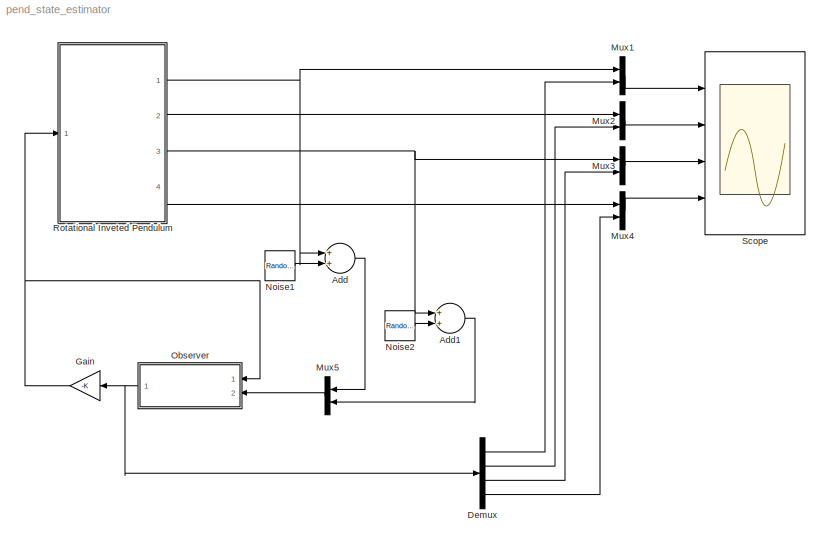
MODEL pend_state_estimator
KIND model
BLOCK [Sum] Add
  InputSameDT = off
  OutDataType = sfix(16)
  OutDataTypeMode = Inherit via internal rule
  OutDataTypeStr = Inherit: Inherit via internal rule
  OutScaling = 2^-10
  Ports = [2, 1]
  SID = 1
  SaturateOnIntegerOverflow = off
BLOCK [Sum] Add1
  InputSameDT = off
  OutDataType = sfix(16)
  OutDataTypeMode = Inherit via internal rule
  OutDataTypeStr = Inherit: Inherit via internal rule
  OutScaling = 2^-10
  Ports = [2, 1]
  SID = 2
  SaturateOnIntegerOverflow = off
BLOCK [Demux] Demux
  DisplayOption = bar
  Ports = [1, 4]
  SID = 3
BLOCK [Gain] Gain
  Gain = -K
  Multiplication = Matrix(K*u)
  OutDataType = sfix(16)
  OutDataTypeMode = Inherit via internal rule
  OutDataTypeStr = Inherit: Inherit via internal rule
  OutScaling = 2^0
  ParamDataTypeStr = Inherit: Inherit via internal rule
  ParameterDataType = sfix(16)
  ParameterDataTypeMode = Inherit via internal rule
  ParameterScaling = 2^0
  SID = 4
  SaturateOnIntegerOverflow = off
BLOCK [Mux] Mux1
  DisplayOption = bar
  Inputs = 2
  Ports = [2, 1]
  SID = 5
BLOCK [Mux] Mux2
  DisplayOption = bar
  Inputs = 2
  Ports = [2, 1]
  SID = 6
BLOCK [Mux] Mux3
  DisplayOption = bar
  Inputs = 2
  Ports = [2, 1]
  SID = 7
BLOCK [Mux] Mux4
  DisplayOption = bar
  Inputs = 2
  Ports = [2, 1]
  SID = 8
BLOCK [Mux] Mux5
  DisplayOption = bar
  Inputs = 2
  Ports = [2, 1]
  SID = 9
BLOCK [RandomNumber] Noise1
  SID = 10
  SampleTime = 0
  Variance = 0.001
BLOCK [RandomNumber] Noise2
  SID = 11
  SampleTime = 0
  Variance = 0.001
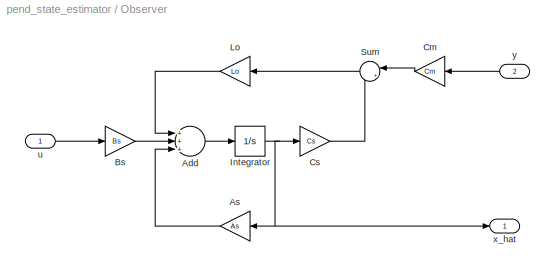
BLOCK [SubSystem] Observer
  FunctionWithSeparateData = off
  MaskHideContents = off
  MinAlgLoopOccurrences = off
  Opaque = off
  Ports = [2, 1]
  PropExecContextOutsideSubsystem = off
  RTWSystemCode = Auto
  RequestExecContextInheritance = off
  SID = 12
BLOCK [Sum] Observer/Add
  InputSameDT = off
  Inputs = +++
  OutDataType = sfix(16)
  OutDataTypeMode = Inherit via internal rule
  OutDataTypeStr = Inherit: Inherit via internal rule
  OutScaling = 2^-10
  Ports = [3, 1]
  SID = 15
  SaturateOnIntegerOverflow = off
BLOCK [Gain] Observer/As
  Gain = As
  Multiplication = Matrix(K*u)
  OutDataType = sfix(16)
  OutDataTypeMode = Inherit via internal rule
  OutDataTypeStr = Inherit: Inherit via internal rule
  OutScaling = 2^0
  ParamDataTypeStr = Inherit: Inherit via internal rule
  ParameterDataType = sfix(16)
  ParameterDataTypeMode = Inherit via internal rule
  ParameterScaling = 2^0
  SID = 16
  SaturateOnIntegerOverflow = off
BLOCK [Gain] Observer/Bs
  Gain = Bs
  Multiplication = Matrix(K*u)
  OutDataType = sfix(16)
  OutDataTypeMode = Inherit via internal rule
  OutDataTypeStr = Inherit: Inherit via internal rule
  OutScaling = 2^0
  ParamDataTypeStr = Inherit: Inherit via internal rule
  ParameterDataType = sfix(16)
  ParameterDataTypeMode = Inherit via internal rule
  ParameterScaling = 2^0
  SID = 17
  SaturateOnIntegerOverflow = off
BLOCK [Gain] Observer/Cm
  Gain = Cm
  Multiplication = Matrix(K*u)
  OutDataType = sfix(16)
  OutDataTypeMode = Inherit via internal rule
  OutDataTypeStr = Inherit: Inherit via internal rule
  OutScaling = 2^0
  ParamDataTypeStr = Inherit: Inherit via internal rule
  ParameterDataType = sfix(16)
  ParameterDataTypeMode = Inherit via internal rule
  ParameterScaling = 2^0
  SID = 18
  SaturateOnIntegerOverflow = off
BLOCK [Gain] Observer/Cs
  Gain = Cs
  Multiplication = Matrix(K*u)
  OutDataType = sfix(16)
  OutDataTypeMode = Inherit via internal rule
  OutDataTypeStr = Inherit: Inherit via internal rule
  OutScaling = 2^0
  ParamDataTypeStr = Inherit: Inherit via internal rule
  ParameterDataType = sfix(16)
  ParameterDataTypeMode = Inherit via internal rule
  ParameterScaling = 2^0
  SID = 19
  SaturateOnIntegerOverflow = off
BLOCK [Integrator] Observer/Integrator
  Ports = [1, 1]
  SID = 20
BLOCK [Gain] Observer/Lo
  Gain = Lo
  Multiplication = Matrix(K*u)
  OutDataType = sfix(16)
  OutDataTypeMode = Inherit via internal rule
  OutDataTypeStr = Inherit: Inherit via internal rule
  OutScaling = 2^0
  ParamDataTypeStr = Inherit: Inherit via internal rule
  ParameterDataType = sfix(16)
  ParameterDataTypeMode = Inherit via internal rule
  ParameterScaling = 2^0
  SID = 21
  SaturateOnIntegerOverflow = off
BLOCK [Sum] Observer/Sum
  IconShape = round
  InputSameDT = off
  Inputs = |+-
  OutDataType = sfix(16)
  OutDataTypeMode = Inherit via internal rule
  OutDataTypeStr = Inherit: Inherit via internal rule
  OutScaling = 2^0
  Ports = [2, 1]
  SID = 22
  SaturateOnIntegerOverflow = off
BLOCK [Inport] Observer/u
  IconDisplay = Port number
  OutDataType = sfix(16)
  OutScaling = 2^0
  SID = 13
BLOCK [Outport] Observer/x_hat
  IconDisplay = Port number
  OutDataType = sfix(16)
  OutScaling = 2^0
  SID = 23
BLOCK [Inport] Observer/y
  IconDisplay = Port number
  OutDataType = sfix(16)
  OutScaling = 2^0
  Port = 2
  SID = 14
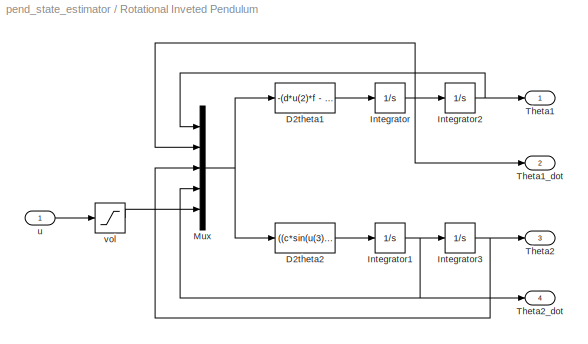
BLOCK [SubSystem] Rotational Inveted Pendulum
  FunctionWithSeparateData = off
  MaskHideContents = off
  MinAlgLoopOccurrences = off
  Opaque = off
  Ports = [1, 4]
  PropExecContextOutsideSubsystem = off
  RTWSystemCode = Auto
  RequestExecContextInheritance = off
  SID = 39
BLOCK [Fcn] Rotational Inveted Pendulum/D2theta1
  Expr = -(d*u(2)*f - e*f*u(5) + b*c2*u(4)*cos(u(3)) + b*u(4)^2*f*sin(u(3)) - b*h*cos(u(3))*sin(u(3)) - b*c*u(2)^2*cos(u(3))^2*sin(u(3)) + 2*c*u(2)*u(4)*f*cos(u(3))*sin(u(3)))/(a*f - b^2*cos(u(3))^2 + c*f*sin(u(3))^2)
  SID = 41
BLOCK [Fcn] Rotational Inveted Pendulum/D2theta2
  Expr = ((c*sin(u(3))^2 + a)*((c*sin(2*u(3))*u(2)^2)/2 - c2*u(4) + h*sin(u(3))))/(a*f - b^2*cos(u(3))^2 + c*f*sin(u(3))^2) - (b*cos(u(3))*(b*sin(u(3))*u(4)^2 + c*u(2)*sin(2*u(3))*u(4) + d*u(2) - e*u(5)))/(a*f - b^2*cos(u(3))^2 + c*f*sin(u(3))^2)
  SID = 42
BLOCK [Integrator] Rotational Inveted Pendulum/Integrator
  Ports = [1, 1]
  SID = 43
BLOCK [Integrator] Rotational Inveted Pendulum/Integrator1
  Ports = [1, 1]
  SID = 44
BLOCK [Integrator] Rotational Inveted Pendulum/Integrator2
  Ports = [1, 1]
  SID = 45
BLOCK [Integrator] Rotational Inveted Pendulum/Integrator3
  InitialCondition = (pi/180)*10
  Ports = [1, 1]
  SID = 46
BLOCK [Mux] Rotational Inveted Pendulum/Mux
  DisplayOption = bar
  Inputs = 5
  Ports = [5, 1]
  SID = 47
BLOCK [Outport] Rotational Inveted Pendulum/Theta1
  IconDisplay = Port number
  OutDataType = fixdt(1, 16)
  OutScaling = 2^0
  SID = 49
BLOCK [Outport] Rotational Inveted Pendulum/Theta1_dot
  IconDisplay = Port number
  OutDataType = fixdt(1, 16)
  OutScaling = 2^0
  Port = 2
  SID = 50
BLOCK [Outport] Rotational Inveted Pendulum/Theta2
  IconDisplay = Port number
  OutDataType = fixdt(1, 16)
  OutScaling = 2^0
  Port = 3
  SID = 51
BLOCK [Outport] Rotational Inveted Pendulum/Theta2_dot
  IconDisplay = Port number
  OutDataType = fixdt(1, 16)
  OutScaling = 2^0
  Port = 4
  SID = 52
BLOCK [Inport] Rotational Inveted Pendulum/u
  IconDisplay = Port number
  OutDataType = fixdt(1, 16)
  OutScaling = 2^0
  SID = 40
BLOCK [Saturate] Rotational Inveted Pendulum/vol
  LowerLimit = -25
  OutDataType = fixdt(1, 16)
  OutScaling = 2^0
  SID = 48
  UpperLimit = 25
BLOCK [Scope] Scope
  DataFormat = StructureWithTime
  Floating = off
  LimitDataPoints = off
  NumInputPorts = 4
  Ports = [4]
  SID = 24
  SampleTime = 0
  SaveToWorkspace = on
  YMax = 5~5~5~5
  YMin = -5~-5~-5~-5
LINE Add1:1 -> Mux5:2
LINE Add:1 -> Mux5:1
LINE Demux:1 -> Mux1:2
LINE Demux:2 -> Mux2:2
LINE Demux:3 -> Mux3:2
LINE Demux:4 -> Mux4:2
NET Gain:1 -> Observer:1, Rotational Inveted Pendulum:1
LINE Mux1:1 -> Scope:1
LINE Mux2:1 -> Scope:2
LINE Mux3:1 -> Scope:3
LINE Mux4:1 -> Scope:4
LINE Mux5:1 -> Observer:2
LINE Noise1:1 -> Add:2
LINE Noise2:1 -> Add1:2
LINE Observer/Add:1 -> Observer/Integrator:1
LINE Observer/As:1 -> Observer/Add:3
LINE Observer/Bs:1 -> Observer/Add:2
LINE Observer/Cm:1 -> Observer/Sum:1
LINE Observer/Cs:1 -> Observer/Sum:2
NET Observer/Integrator:1 -> Observer/As:1, Observer/Cs:1, Observer/x_hat:1
LINE Observer/Lo:1 -> Observer/Add:1
LINE Observer/Sum:1 -> Observer/Lo:1
LINE Observer/u:1 -> Observer/Bs:1
LINE Observer/y:1 -> Observer/Cm:1
NET Observer:1 -> Demux:1, Gain:1
LINE Rotational Inveted Pendulum/D2theta1:1 -> Rotational Inveted Pendulum/Integrator:1
LINE Rotational Inveted Pendulum/D2theta2:1 -> Rotational Inveted Pendulum/Integrator1:1
NET Rotational Inveted Pendulum/Integrator1:1 -> Rotational Inveted Pendulum/Integrator3:1, Rotational Inveted Pendulum/Mux:4, Rotational Inveted Pendulum/Theta2_dot:1
NET Rotational Inveted Pendulum/Integrator2:1 -> Rotational Inveted Pendulum/Mux:1, Rotational Inveted Pendulum/Theta1:1
NET Rotational Inveted Pendulum/Integrator3:1 -> Rotational Inveted Pendulum/Mux:3, Rotational Inveted Pendulum/Theta2:1
NET Rotational Inveted Pendulum/Integrator:1 -> Rotational Inveted Pendulum/Integrator2:1, Rotational Inveted Pendulum/Mux:2, Rotational Inveted Pendulum/Theta1_dot:1
NET Rotational Inveted Pendulum/Mux:1 -> Rotational Inveted Pendulum/D2theta1:1, Rotational Inveted Pendulum/D2theta2:1
LINE Rotational Inveted Pendulum/u:1 -> Rotational Inveted Pendulum/vol:1
LINE Rotational Inveted Pendulum/vol:1 -> Rotational Inveted Pendulum/Mux:5
NET Rotational Inveted Pendulum:1 -> Add:1, Mux1:1
LINE Rotational Inveted Pendulum:2 -> Mux2:1
NET Rotational Inveted Pendulum:3 -> Add1:1, Mux3:1
LINE Rotational Inveted Pendulum:4 -> Mux4:1
note: NET lines group one-source signal fan-out (src -> all destinations, sorted); 1:1 wires keep LINE
